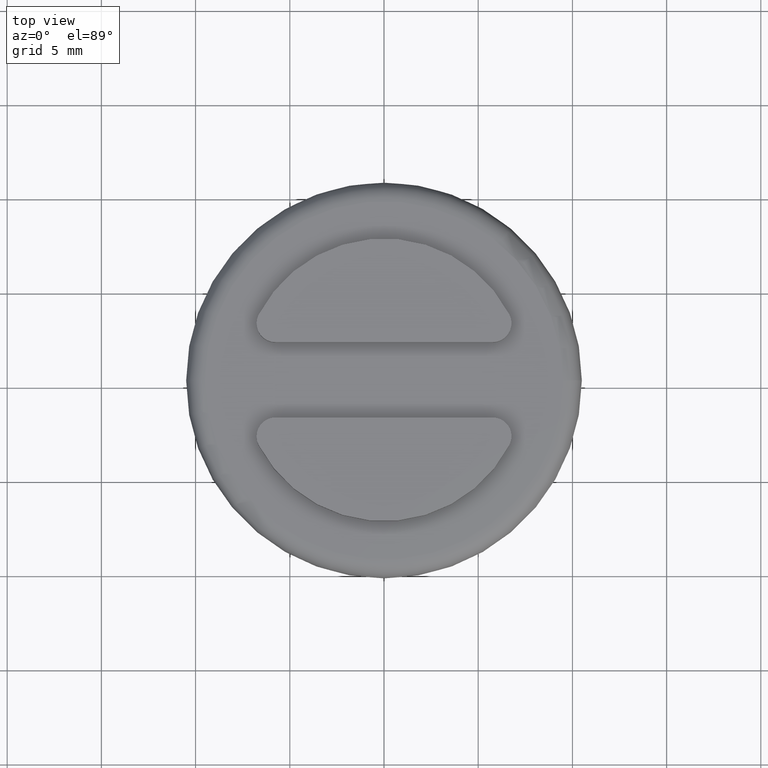
[diagram: clean part render]
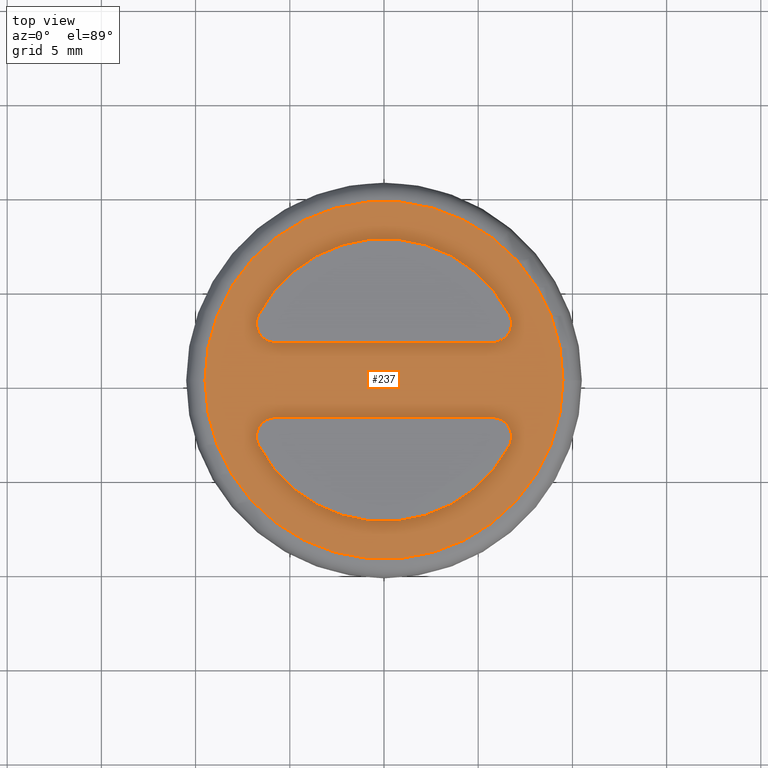
[diagram: same view with one face highlighted and labeled with its STEP entity id]
A machine part, top view. The second image highlights one B-rep face of the part: STEP entity #237.
In plain terms, the highlighted planar face has unit normal (0, 0, 1).
Its self-contained STEP definition (entity closure, byte-faithful):
#15=FACE_BOUND('',#51,.T.);
#16=FACE_BOUND('',#52,.T.);
#23=PLANE('',#265);
#35=FACE_OUTER_BOUND('',#50,.T.);
#50=EDGE_LOOP('',(#182));
#51=EDGE_LOOP('',(#183,#184,#185,#186));
#52=EDGE_LOOP('',(#187,#188,#189,#190));
#66=LINE('',#368,#78);
#70=LINE('',#388,#82);
#78=VECTOR('',#291,11.5325625946708);
#82=VECTOR('',#313,11.5325625946708);
#87=CIRCLE('',#248,1.);
#90=CIRCLE('',#254,1.);
#92=CIRCLE('',#257,1.);
#94=CIRCLE('',#261,1.);
#96=CIRCLE('',#264,7.5);
#97=CIRCLE('',#266,9.5);
#98=CIRCLE('',#267,7.5);
#104=VERTEX_POINT('',#358);
#105=VERTEX_POINT('',#360);
#107=VERTEX_POINT('',#366);
#109=VERTEX_POINT('',#374);
#112=VERTEX_POINT('',#381);
#113=VERTEX_POINT('',#383);
#114=VERTEX_POINT('',#387);
#117=VERTEX_POINT('',#395);
#118=VERTEX_POINT('',#402);
#124=EDGE_CURVE('',#104,#105,#87,.F.);
#128=EDGE_CURVE('',#107,#104,#66,.T.);
#132=EDGE_CURVE('',#109,#107,#90,.F.);
#135=EDGE_CURVE('',#112,#113,#92,.F.);
#137=EDGE_CURVE('',#113,#114,#70,.T.);
#141=EDGE_CURVE('',#114,#117,#94,.F.);
#144=EDGE_CURVE('',#112,#117,#96,.T.);
#145=EDGE_CURVE('',#118,#118,#97,.T.);
#146=EDGE_CURVE('',#109,#105,#98,.T.);
#182=ORIENTED_EDGE('',*,*,#145,.F.);
#183=ORIENTED_EDGE('',*,*,#144,.T.);
#184=ORIENTED_EDGE('',*,*,#141,.F.);
#185=ORIENTED_EDGE('',*,*,#137,.F.);
#186=ORIENTED_EDGE('',*,*,#135,.F.);
#187=ORIENTED_EDGE('',*,*,#146,.T.);
#188=ORIENTED_EDGE('',*,*,#124,.F.);
#189=ORIENTED_EDGE('',*,*,#128,.F.);
#190=ORIENTED_EDGE('',*,*,#132,.F.);
#237=ADVANCED_FACE('',(#35,#15,#16),#23,.T.);
#248=AXIS2_PLACEMENT_3D('',#361,#284,#285);
#254=AXIS2_PLACEMENT_3D('',#376,#301,#302);
#257=AXIS2_PLACEMENT_3D('',#384,#308,#309);
#261=AXIS2_PLACEMENT_3D('',#396,#320,#321);
#264=AXIS2_PLACEMENT_3D('',#400,#327,#328);
#265=AXIS2_PLACEMENT_3D('',#401,#329,#330);
#266=AXIS2_PLACEMENT_3D('',#403,#331,#332);
#267=AXIS2_PLACEMENT_3D('',#404,#333,#334);
#284=DIRECTION('center_axis',(0.,0.,-1.));
#285=DIRECTION('ref_axis',(-0.85485041426511,0.518874521662771,0.));
#291=DIRECTION('',(-1.,-1.21430643318377E-16,0.));
#301=DIRECTION('center_axis',(0.,0.,-1.));
#302=DIRECTION('ref_axis',(0.854850414265111,0.51887452166277,0.));
#308=DIRECTION('center_axis',(0.,0.,-1.));
#309=DIRECTION('ref_axis',(-0.85485041426511,-0.518874521662771,0.));
#313=DIRECTION('',(1.,0.,0.));
#320=DIRECTION('center_axis',(0.,0.,-1.));
#321=DIRECTION('ref_axis',(0.85485041426511,-0.518874521662772,0.));
#327=DIRECTION('center_axis',(0.,0.,-1.));
#328=DIRECTION('ref_axis',(-1.,0.,0.));
#329=DIRECTION('center_axis',(0.,0.,1.));
#330=DIRECTION('ref_axis',(1.,0.,0.));
#331=DIRECTION('center_axis',(0.,0.,-1.));
#332=DIRECTION('ref_axis',(-1.,0.,0.));
#333=DIRECTION('center_axis',(0.,0.,-1.));
#334=DIRECTION('ref_axis',(-1.,0.,0.));
#358=CARTESIAN_POINT('',(-5.7662812973354,-2.,24.));
#360=CARTESIAN_POINT('',(-6.65340149692546,-3.46153846153846,24.));
#361=CARTESIAN_POINT('Origin',(-5.7662812973354,-3.,24.));
#366=CARTESIAN_POINT('',(5.7662812973354,-2.,24.));
#368=CARTESIAN_POINT('',(8.,-2.,24.));
#374=CARTESIAN_POINT('',(6.65340149692546,-3.46153846153846,24.));
#376=CARTESIAN_POINT('Origin',(5.7662812973354,-3.,24.));
#381=CARTESIAN_POINT('',(-6.65340149692546,3.46153846153846,24.));
#383=CARTESIAN_POINT('',(-5.7662812973354,2.,24.));
#384=CARTESIAN_POINT('Origin',(-5.7662812973354,3.,24.));
#387=CARTESIAN_POINT('',(5.7662812973354,2.,24.));
#388=CARTESIAN_POINT('',(-8.,2.,24.));
#395=CARTESIAN_POINT('',(6.65340149692546,3.46153846153846,24.));
#396=CARTESIAN_POINT('Origin',(5.7662812973354,3.,24.));
#400=CARTESIAN_POINT('Origin',(0.,0.,24.));
#401=CARTESIAN_POINT('Origin',(-4.5960834877465E-16,1.76225876924628E-16,
24.));
#402=CARTESIAN_POINT('',(9.5,-1.16341445918999E-15,24.));
#403=CARTESIAN_POINT('Origin',(0.,0.,24.));
#404=CARTESIAN_POINT('Origin',(0.,0.,24.));